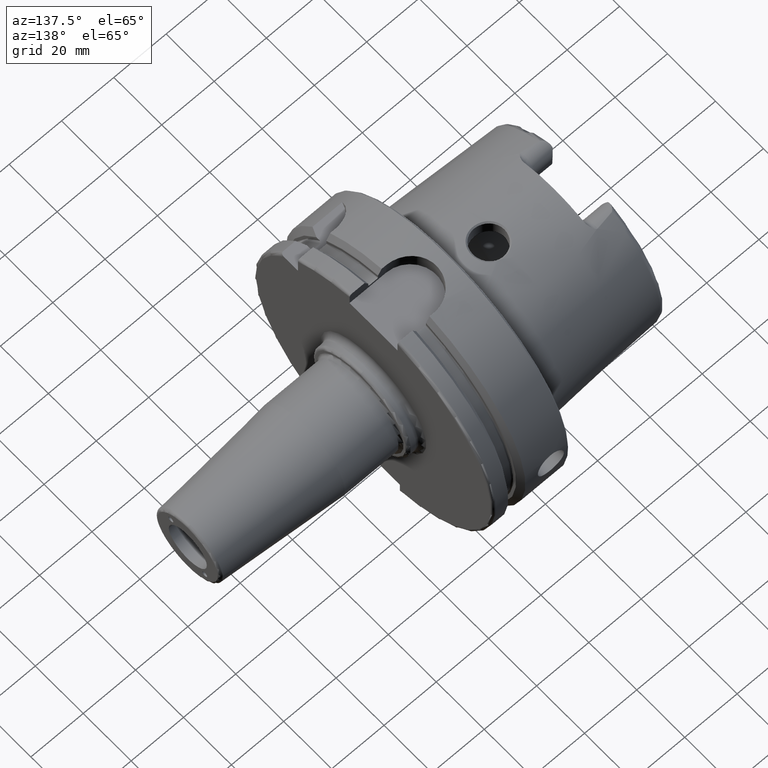
[diagram: clean part render]
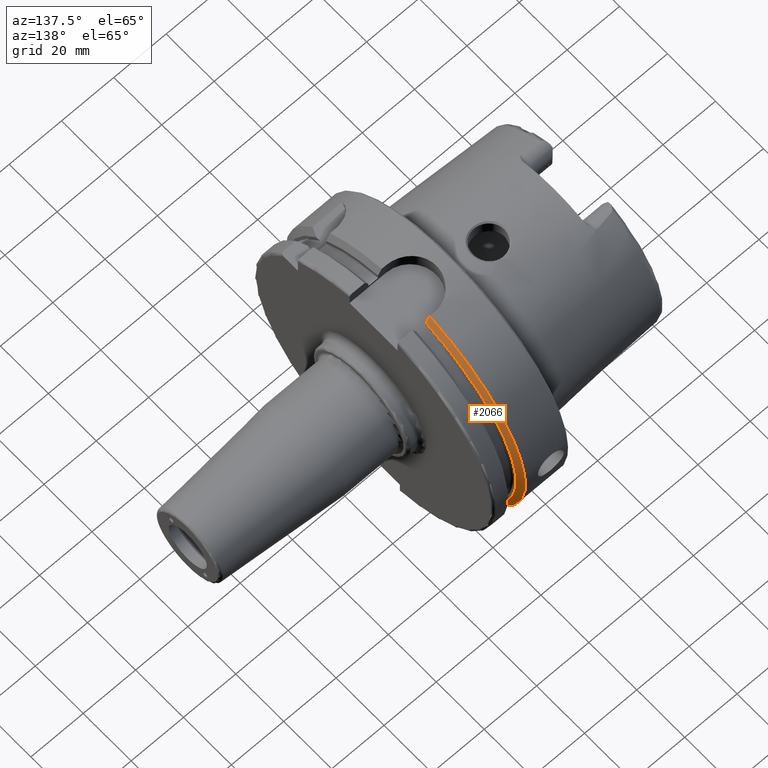
[diagram: same view with one face highlighted and labeled with its STEP entity id]
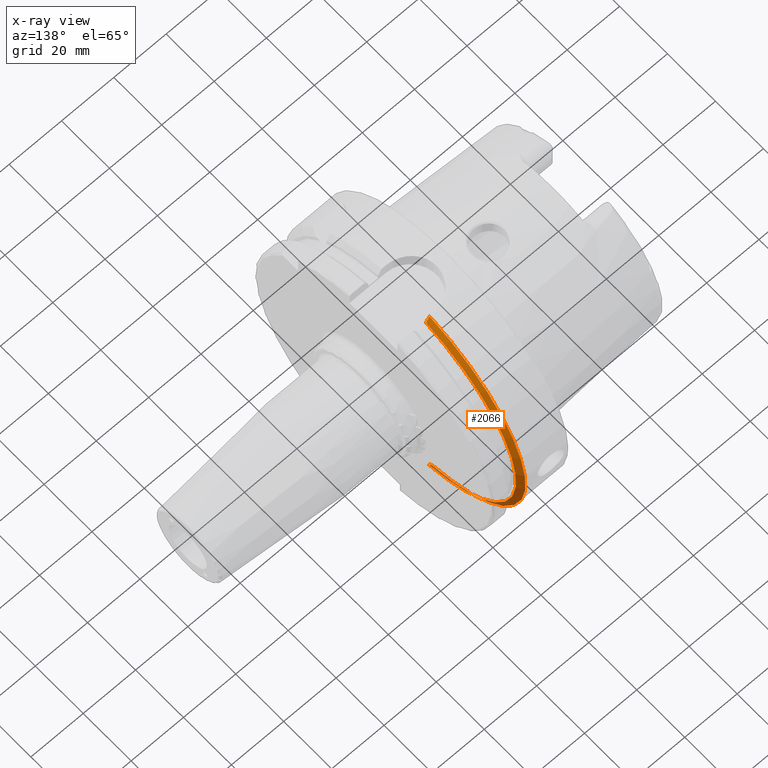
[diagram: x-ray of the same camera — body ghosted, the highlighted face saturated]
A machine part, auxiliary view. The second image highlights one B-rep face of the part: STEP entity #2066.
The next image is the same camera in x-ray: the body ghosted, the highlighted face saturated — about 7% of this face is hidden behind the body in this view.
In plain terms, the highlighted conical surface has half-angle 60 deg.
Its self-contained STEP definition (entity closure, byte-faithful):
#23=(
BOUNDED_CURVE()
B_SPLINE_CURVE(2,(#4190,#4191,#4192),.UNSPECIFIED.,.F.,.F.)
B_SPLINE_CURVE_WITH_KNOTS((3,3),(0.,0.282923490805558),.UNSPECIFIED.)
CURVE()
GEOMETRIC_REPRESENTATION_ITEM()
RATIONAL_B_SPLINE_CURVE((1.,1.00031934109636,1.))
REPRESENTATION_ITEM('')
);
#28=(
BOUNDED_CURVE()
B_SPLINE_CURVE(2,(#4355,#4356,#4357),.UNSPECIFIED.,.F.,.F.)
B_SPLINE_CURVE_WITH_KNOTS((3,3),(0.,0.281931851964124),.UNSPECIFIED.)
CURVE()
GEOMETRIC_REPRESENTATION_ITEM()
RATIONAL_B_SPLINE_CURVE((1.,1.00031639798907,1.))
REPRESENTATION_ITEM('')
);
#282=FACE_OUTER_BOUND('',#413,.T.);
#413=EDGE_LOOP('',(#1732,#1733,#1734,#1735));
#740=CIRCLE('',#2253,50.);
#764=CIRCLE('',#2302,47.5975952641917);
#944=VERTEX_POINT('',#4071);
#945=VERTEX_POINT('',#4073);
#963=VERTEX_POINT('',#4189);
#988=VERTEX_POINT('',#4351);
#1191=EDGE_CURVE('',#945,#944,#740,.T.);
#1221=EDGE_CURVE('',#963,#945,#23,.T.);
#1261=EDGE_CURVE('',#963,#988,#764,.T.);
#1263=EDGE_CURVE('',#944,#988,#28,.T.);
#1732=ORIENTED_EDGE('',*,*,#1221,.T.);
#1733=ORIENTED_EDGE('',*,*,#1191,.T.);
#1734=ORIENTED_EDGE('',*,*,#1263,.T.);
#1735=ORIENTED_EDGE('',*,*,#1261,.F.);
#1988=CONICAL_SURFACE('',#2303,48.7987976320958,1.0471975511966);
#2066=ADVANCED_FACE('',(#282),#1988,.T.);
#2253=AXIS2_PLACEMENT_3D('',#4074,#2689,#2690);
#2302=AXIS2_PLACEMENT_3D('',#4352,#2812,#2813);
#2303=AXIS2_PLACEMENT_3D('',#4354,#2815,#2816);
#2689=DIRECTION('center_axis',(1.,0.,0.));
#2690=DIRECTION('ref_axis',(0.,0.,-1.));
#2812=DIRECTION('center_axis',(1.,0.,0.));
#2813=DIRECTION('ref_axis',(0.,0.,-1.));
#2815=DIRECTION('center_axis',(-1.,0.,0.));
#2816=DIRECTION('ref_axis',(0.,1.,0.));
#4071=CARTESIAN_POINT('',(16.7379709790786,10.,48.9897948556636));
#4073=CARTESIAN_POINT('',(16.7379709790786,11.,-48.7749935930288));
#4074=CARTESIAN_POINT('Origin',(16.7379709790786,0.,0.));
#4189=CARTESIAN_POINT('',(18.125,11.,-46.3090819919139));
#4190=CARTESIAN_POINT('Ctrl Pts',(18.125,11.,-46.3090819919139));
#4191=CARTESIAN_POINT('Ctrl Pts',(17.4494711035784,11.,-47.5116880808765));
#4192=CARTESIAN_POINT('Ctrl Pts',(16.7379709790786,11.,-48.7749935930288));
#4351=CARTESIAN_POINT('',(18.125,10.,46.5352670018536));
#4352=CARTESIAN_POINT('Origin',(18.125,0.,0.));
#4354=CARTESIAN_POINT('Origin',(17.4314854895393,0.,0.));
#4355=CARTESIAN_POINT('Ctrl Pts',(16.7379709790786,10.,48.9897948556636));
#4356=CARTESIAN_POINT('Ctrl Pts',(17.4493054275198,10.,47.7323213252028));
#4357=CARTESIAN_POINT('Ctrl Pts',(18.125,10.,46.5352670018536));